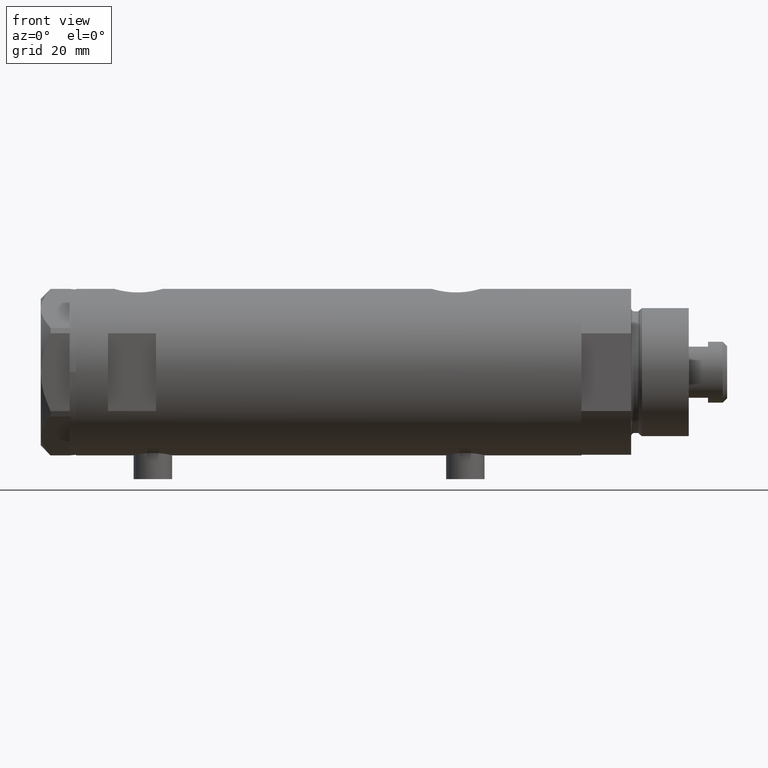
[diagram: clean part render]
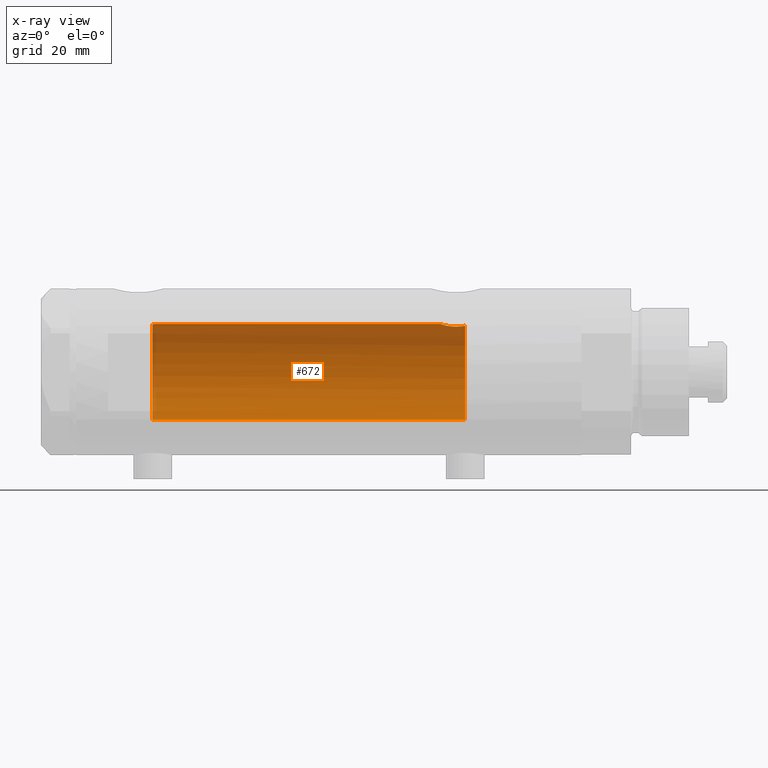
[diagram: x-ray — body ghosted, one internal face saturated and labeled with its STEP entity id]
A machine part, front view, then the same camera in x-ray: the body is ghosted and one INTERNAL B-rep face — a face not visible from any outside direction — is saturated and labeled: STEP entity #672.
In plain terms, the highlighted cylindrical surface (partial cylindrical patch) has radius 15 mm, axis along (1, 0, -0).
Its self-contained STEP definition (entity closure, byte-faithful):
#66 = EDGE_CURVE ( 'NONE', #4515, #4045, #1928, .T. ) ;
#81 = DIRECTION ( 'NONE',  ( -1.000000000000000000, 0.000000000000000000, 0.000000000000000000 ) ) ;
#114 = CARTESIAN_POINT ( 'NONE',  ( 14.82638779339053947, 2.275571356824483082, 55.15000000000000568 ) ) ;
#152 = EDGE_CURVE ( 'NONE', #2034, #4215, #655, .T. ) ;
#188 = CIRCLE ( 'NONE', #1197, 15.00000000000000000 ) ;
#213 = CARTESIAN_POINT ( 'NONE',  ( 14.33601656325283180, 4.414747171699214157, -37.69405684818107716 ) ) ;
#236 = CARTESIAN_POINT ( 'NONE',  ( 14.42796195111116830, 4.108450791336244023, -37.10736184290816198 ) ) ;
#255 = CARTESIAN_POINT ( 'NONE',  ( 14.25831405531604545, 4.659025730769700502, -41.16798855846089822 ) ) ;
#322 = CARTESIAN_POINT ( 'NONE',  ( 0.000000000000000000, 0.000000000000000000, 78.95000000000000284 ) ) ;
#578 = CARTESIAN_POINT ( 'NONE',  ( 14.99999999999999822, 0.2215872191885691345, -34.88500000000000512 ) ) ;
#609 = CARTESIAN_POINT ( 'NONE',  ( 14.99509227038106296, 0.4430293709771138122, -34.90006686301529726 ) ) ;
#630 = CARTESIAN_POINT ( 'NONE',  ( 14.30778609824508152, 4.504821240468950272, -37.89964104205774476 ) ) ;
#645 = ORIENTED_EDGE ( 'NONE', *, *, #3253, .T. ) ;
#655 = CIRCLE ( 'NONE', #4394, 15.00000000000000000 ) ;
#672 = ADVANCED_FACE ( 'NONE', ( #4011 ), #2204, .F. ) ;
#699 = DIRECTION ( 'NONE',  ( -0.000000000000000000, -0.000000000000000000, -1.000000000000000000 ) ) ;
#707 = CARTESIAN_POINT ( 'NONE',  ( -15.00000000000000000, 0.000000000000000000, 78.95000000000000284 ) ) ;
#758 = CARTESIAN_POINT ( 'NONE',  ( 14.30582738521795072, 4.511024637967008033, -41.58517547595721453 ) ) ;
#781 = CARTESIAN_POINT ( 'NONE',  ( 14.42780822725581125, 4.105572710089619548, -42.36940228115440732 ) ) ;
#794 = CARTESIAN_POINT ( 'NONE',  ( 0.000000000000000000, 0.000000000000000000, -42.55000000000000426 ) ) ;
#909 = CARTESIAN_POINT ( 'NONE',  ( -15.00000000000000000, 0.000000000000000000, -42.55000000000000426 ) ) ;
#1000 = CARTESIAN_POINT ( 'NONE',  ( 14.20808274384303971, 4.809639920165276195, -40.51496246579131366 ) ) ;
#1007 = EDGE_CURVE ( 'NONE', #4515, #1501, #188, .T. ) ;
#1042 = AXIS2_PLACEMENT_3D ( 'NONE', #322, #699, #4739 ) ;
#1050 = DIRECTION ( 'NONE',  ( 1.000000000000000000, 0.000000000000000000, 0.000000000000000000 ) ) ;
#1107 = CARTESIAN_POINT ( 'NONE',  ( 14.46277203719950855, 3.978470183374505975, -42.55000000000000426 ) ) ;
#1197 = AXIS2_PLACEMENT_3D ( 'NONE', #2921, #1769, #1050 ) ;
#1225 = CARTESIAN_POINT ( 'NONE',  ( 15.00000000000000000, 0.000000000000000000, 54.58500000000000085 ) ) ;
#1235 = ORIENTED_EDGE ( 'NONE', *, *, #4669, .F. ) ;
#1321 = CARTESIAN_POINT ( 'NONE',  ( 14.90012193493785198, 1.740148100968098577, -35.20148967824482611 ) ) ;
#1360 = CARTESIAN_POINT ( 'NONE',  ( 14.81695028448457130, 2.344053258630407033, -35.48122781573722051 ) ) ;
#1471 = CARTESIAN_POINT ( 'NONE',  ( -15.00000000000000000, 0.000000000000000000, 55.15000000000000568 ) ) ;
#1501 = VERTEX_POINT ( 'NONE', #1471 ) ;
#1517 = CARTESIAN_POINT ( 'NONE',  ( 14.87714698525761214, 1.924825815456623568, 54.97761219789977361 ) ) ;
#1594 = B_SPLINE_CURVE_WITH_KNOTS ( 'NONE', 3,
 ( #1678, #578, #609, #2911, #4387, #3903, #1321, #2134, #1360, #2461, #3922, #3972, #236, #213, #630, #1708, #3208, #2115, #1729, #4346, #1000, #3601, #255, #758, #4792, #4845, #781, #1107 ),
 .UNSPECIFIED., .F., .F.,
 ( 4, 2, 2, 2, 2, 2, 2, 2, 2, 2, 2, 2, 2, 4 ),
 ( 0.01531448496322443745, 0.01597936247866482348, 0.01664423999410521299, 0.01730911750954559902, 0.01797399502498598853, 0.01930375005586676060, 0.02063350508674753614, 0.02129838260218791524, 0.02196326011762829433, 0.02329301514850904906, 0.02395789266394942815, 0.02462277017938980378, 0.02528764769483018288, 0.02595252521027056197 ),
 .UNSPECIFIED. ) ;
#1678 = CARTESIAN_POINT ( 'NONE',  ( 15.00000000000000000, 5.959273468635536151E-16, -34.88499999999999801 ) ) ;
#1708 = CARTESIAN_POINT ( 'NONE',  ( 14.25987224063200465, 4.654266980155760791, -38.31645838593740905 ) ) ;
#1729 = CARTESIAN_POINT ( 'NONE',  ( 14.18274079043653124, 4.883732009304969424, -39.63167541567704433 ) ) ;
#1769 = DIRECTION ( 'NONE',  ( 0.000000000000000000, 0.000000000000000000, 1.000000000000000000 ) ) ;
#1806 = LINE ( 'NONE', #4122, #4254 ) ;
#1928 = B_SPLINE_CURVE_WITH_KNOTS ( 'NONE', 3,
 ( #114, #3867, #1517, #2718, #2764, #3427, #2745, #1225 ),
 .UNSPECIFIED., .F., .F.,
 ( 4, 2, 2, 4 ),
 ( 0.02826119741494479559, 0.02885214443185066258, 0.02944309144875652956, 0.03062498548256826700 ),
 .UNSPECIFIED. ) ;
#1933 = CARTESIAN_POINT ( 'NONE',  ( 14.82638779339053947, 2.275571356824483082, 55.15000000000000568 ) ) ;
#2009 = ORIENTED_EDGE ( 'NONE', *, *, #152, .T. ) ;
#2034 = VERTEX_POINT ( 'NONE', #909 ) ;
#2115 = CARTESIAN_POINT ( 'NONE',  ( 14.19413554982521219, 4.851369549374611623, -39.17746179061393264 ) ) ;
#2134 = CARTESIAN_POINT ( 'NONE',  ( 14.84719462287499958, 2.145357993387301043, -35.37798666051606489 ) ) ;
#2204 = CYLINDRICAL_SURFACE ( 'NONE', #1042, 15.00000000000000000 ) ;
#2461 = CARTESIAN_POINT ( 'NONE',  ( 14.72004460873233000, 2.909758128378248987, -35.82614485536702631 ) ) ;
#2558 = DIRECTION ( 'NONE',  ( -0.000000000000000000, -0.000000000000000000, -1.000000000000000000 ) ) ;
#2599 = ORIENTED_EDGE ( 'NONE', *, *, #3151, .F. ) ;
#2686 = DIRECTION ( 'NONE',  ( 0.000000000000000000, 0.000000000000000000, -1.000000000000000000 ) ) ;
#2718 = CARTESIAN_POINT ( 'NONE',  ( 14.92022334814851270, 1.556082286439819828, 54.83634472570267349 ) ) ;
#2745 = CARTESIAN_POINT ( 'NONE',  ( 14.99999999999999822, 0.3998316629799389399, 54.58500000000000085 ) ) ;
#2764 = CARTESIAN_POINT ( 'NONE',  ( 14.93895715383719569, 1.365440931094926480, 54.77638192761232716 ) ) ;
#2789 = VECTOR ( 'NONE', #3325, 1000.000000000000000 ) ;
#2911 = CARTESIAN_POINT ( 'NONE',  ( 14.97547159671691475, 0.8856171163179413774, -34.96107436056316686 ) ) ;
#2921 = CARTESIAN_POINT ( 'NONE',  ( 0.000000000000000000, 0.000000000000000000, 55.15000000000000568 ) ) ;
#2945 = LINE ( 'NONE', #707, #2789 ) ;
#3151 = EDGE_CURVE ( 'NONE', #4045, #3455, #1806, .T. ) ;
#3208 = CARTESIAN_POINT ( 'NONE',  ( 14.23996709707015818, 4.714409263334266242, -38.52876674044652816 ) ) ;
#3253 = EDGE_CURVE ( 'NONE', #1501, #2034, #2945, .T. ) ;
#3325 = DIRECTION ( 'NONE',  ( -0.000000000000000000, -0.000000000000000000, -1.000000000000000000 ) ) ;
#3333 = CARTESIAN_POINT ( 'NONE',  ( 15.00000000000000000, 0.000000000000000000, 54.58500000000000085 ) ) ;
#3414 = ORIENTED_EDGE ( 'NONE', *, *, #1007, .T. ) ;
#3427 = CARTESIAN_POINT ( 'NONE',  ( 14.98404286071220781, 0.7911628595372691697, 54.63357750803344004 ) ) ;
#3452 = ORIENTED_EDGE ( 'NONE', *, *, #66, .F. ) ;
#3455 = VERTEX_POINT ( 'NONE', #4784 ) ;
#3601 = CARTESIAN_POINT ( 'NONE',  ( 14.23822651595894584, 4.719656459720482644, -40.95110225956646843 ) ) ;
#3867 = CARTESIAN_POINT ( 'NONE',  ( 14.85285765243877698, 2.103108122960815507, 55.05873200114292842 ) ) ;
#3903 = CARTESIAN_POINT ( 'NONE',  ( 14.92306512695867049, 1.532295990539004116, -35.12730056478244478 ) ) ;
#3922 = CARTESIAN_POINT ( 'NONE',  ( 14.64710079709035107, 3.249565827911971017, -36.10237283776275063 ) ) ;
#3972 = CARTESIAN_POINT ( 'NONE',  ( 14.49939476291675078, 3.855488469592460277, -36.74998822577914837 ) ) ;
#4011 = FACE_OUTER_BOUND ( 'NONE', #4294, .T. ) ;
#4045 = VERTEX_POINT ( 'NONE', #3333 ) ;
#4122 = CARTESIAN_POINT ( 'NONE',  ( 15.00000000000000000, 1.836970198721029589E-15, 78.95000000000000284 ) ) ;
#4215 = VERTEX_POINT ( 'NONE', #4392 ) ;
#4254 = VECTOR ( 'NONE', #2558, 1000.000000000000000 ) ;
#4294 = EDGE_LOOP ( 'NONE', ( #2599, #3452, #3414, #645, #2009, #1235 ) ) ;
#4346 = CARTESIAN_POINT ( 'NONE',  ( 14.19789541567450364, 4.839422427565552631, -40.29531557750247117 ) ) ;
#4387 = CARTESIAN_POINT ( 'NONE',  ( 14.96070684509191295, 1.105917936056761253, -35.00719211967314237 ) ) ;
#4392 = CARTESIAN_POINT ( 'NONE',  ( 14.46277203719950855, 3.978470183374505975, -42.55000000000000426 ) ) ;
#4394 = AXIS2_PLACEMENT_3D ( 'NONE', #794, #2686, #81 ) ;
#4515 = VERTEX_POINT ( 'NONE', #1933 ) ;
#4669 = EDGE_CURVE ( 'NONE', #3455, #4215, #1594, .T. ) ;
#4739 = DIRECTION ( 'NONE',  ( -1.000000000000000000, 0.000000000000000000, 0.000000000000000000 ) ) ;
#4784 = CARTESIAN_POINT ( 'NONE',  ( 15.00000000000000000, 5.959273468635536151E-16, -34.88499999999999801 ) ) ;
#4792 = CARTESIAN_POINT ( 'NONE',  ( 14.33334483745703203, 4.423389780079196143, -41.78724945987951855 ) ) ;
#4845 = CARTESIAN_POINT ( 'NONE',  ( 14.39420242489971535, 4.221147702577646932, -42.17871871185445087 ) ) ;